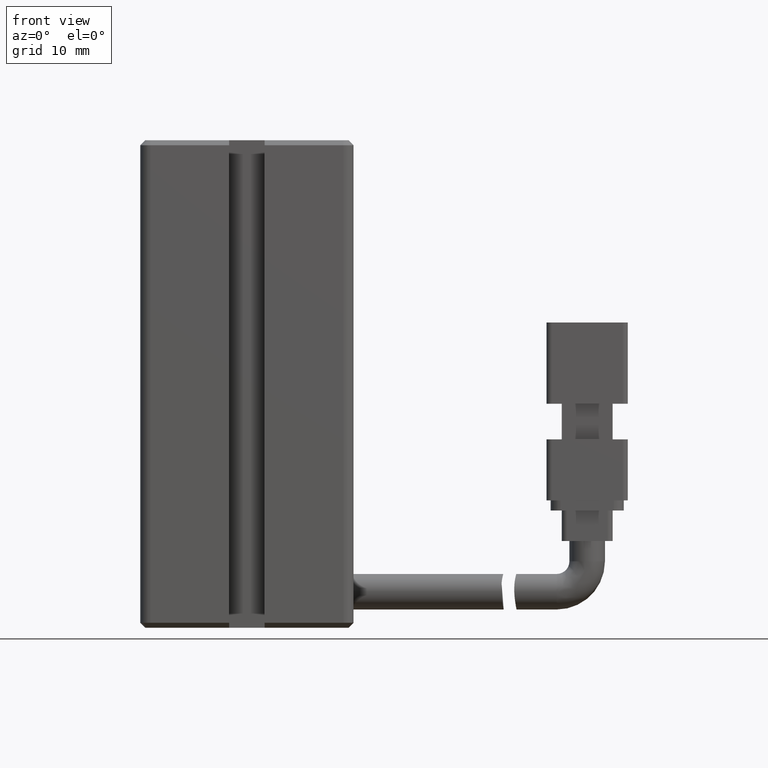
[diagram: clean part render]
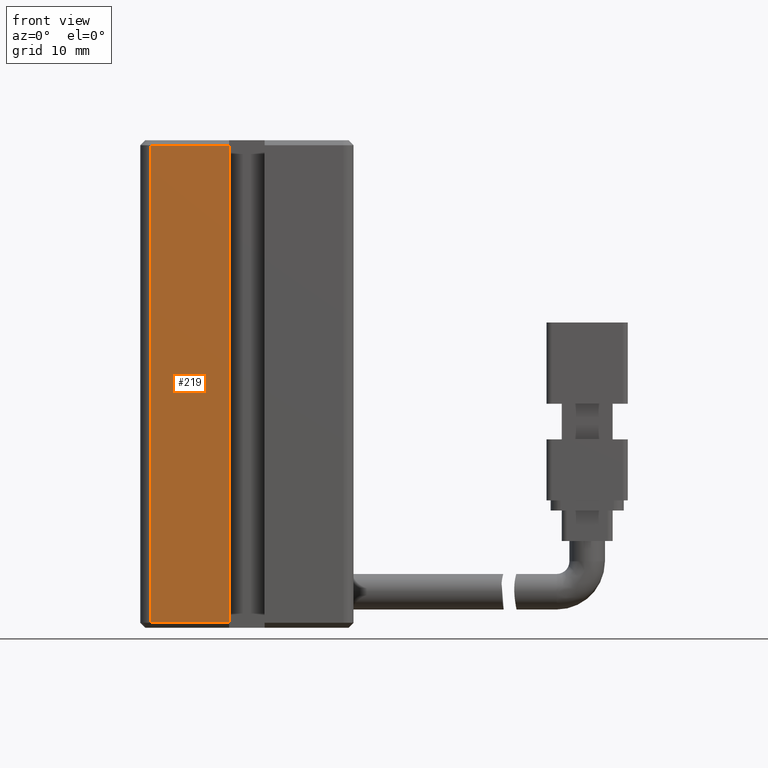
[diagram: same view with one face highlighted and labeled with its STEP entity id]
A machine part, front view. The second image highlights one B-rep face of the part: STEP entity #219.
In plain terms, the highlighted planar face has unit normal (0, -1, 0).
Its self-contained STEP definition (entity closure, byte-faithful):
#219 = ADVANCED_FACE ( 'NONE', ( #21812 ), #13846, .T. ) ;
#1153 = LINE ( 'NONE', #27640, #3471 ) ;
#3283 = CARTESIAN_POINT ( 'NONE',  ( 39.17537974683542500, 10.99073232304837000, -91.50000000000000000 ) ) ;
#3471 = VECTOR ( 'NONE', #21629, 1000.000000000000000 ) ;
#3717 = AXIS2_PLACEMENT_3D ( 'NONE', #4478, #13967, #10597 ) ;
#4058 = VERTEX_POINT ( 'NONE', #8621 ) ;
#4478 = CARTESIAN_POINT ( 'NONE',  ( 40.92537974683542500, 10.99073232304837000, -91.00000000000000000 ) ) ;
#7350 = EDGE_CURVE ( 'NONE', #32175, #4058, #19402, .T. ) ;
#7577 = CARTESIAN_POINT ( 'NONE',  ( 39.17537974683542500, 10.99073232304837000, -91.00000000000000000 ) ) ;
#8621 = CARTESIAN_POINT ( 'NONE',  ( 31.42537974683542900, 10.99073232304837000, -91.50000000000000000 ) ) ;
#10597 = DIRECTION ( 'NONE',  ( 0.0000000000000000000, -0.0000000000000000000, -1.000000000000000000 ) ) ;
#10728 = ORIENTED_EDGE ( 'NONE', *, *, #17965, .T. ) ;
#13068 = DIRECTION ( 'NONE',  ( -1.000000000000000000, 0.0000000000000000000, -0.0000000000000000000 ) ) ;
#13846 = PLANE ( 'NONE',  #3717 ) ;
#13967 = DIRECTION ( 'NONE',  ( 0.0000000000000000000, -1.000000000000000000, 0.0000000000000000000 ) ) ;
#14848 = LINE ( 'NONE', #38739, #34059 ) ;
#17206 = ORIENTED_EDGE ( 'NONE', *, *, #7350, .T. ) ;
#17965 = EDGE_CURVE ( 'NONE', #4058, #21767, #1153, .T. ) ;
#19402 = LINE ( 'NONE', #27864, #27851 ) ;
#21629 = DIRECTION ( 'NONE',  ( 0.0000000000000000000, -0.0000000000000000000, -1.000000000000000000 ) ) ;
#21767 = VERTEX_POINT ( 'NONE', #25654 ) ;
#21812 = FACE_OUTER_BOUND ( 'NONE', #35555, .T. ) ;
#21970 = ORIENTED_EDGE ( 'NONE', *, *, #30660, .F. ) ;
#21981 = VECTOR ( 'NONE', #28497, 1000.000000000000000 ) ;
#23331 = DIRECTION ( 'NONE',  ( -1.000000000000000000, -0.0000000000000000000, -0.0000000000000000000 ) ) ;
#25654 = CARTESIAN_POINT ( 'NONE',  ( 31.42537974683542900, 10.99073232305496000, -138.5000000000031800 ) ) ;
#27640 = CARTESIAN_POINT ( 'NONE',  ( 31.42537974683542900, 10.99073232304837000, -91.00000000000000000 ) ) ;
#27851 = VECTOR ( 'NONE', #13068, 1000.000000000000000 ) ;
#27864 = CARTESIAN_POINT ( 'NONE',  ( 40.92537974683542500, 10.99073232304837000, -91.50000000000000000 ) ) ;
#28497 = DIRECTION ( 'NONE',  ( -0.0000000000000000000, 0.0000000000000000000, 1.000000000000000000 ) ) ;
#30660 = EDGE_CURVE ( 'NONE', #32850, #21767, #14848, .T. ) ;
#31799 = EDGE_CURVE ( 'NONE', #32850, #32175, #35104, .T. ) ;
#32175 = VERTEX_POINT ( 'NONE', #3283 ) ;
#32850 = VERTEX_POINT ( 'NONE', #34200 ) ;
#33584 = ORIENTED_EDGE ( 'NONE', *, *, #31799, .T. ) ;
#34059 = VECTOR ( 'NONE', #23331, 1000.000000000000000 ) ;
#34200 = CARTESIAN_POINT ( 'NONE',  ( 39.17537974683542500, 10.99073232304836600, -138.5000000000000000 ) ) ;
#35104 = LINE ( 'NONE', #7577, #21981 ) ;
#35555 = EDGE_LOOP ( 'NONE', ( #10728, #21970, #33584, #17206 ) ) ;
#38739 = CARTESIAN_POINT ( 'NONE',  ( 40.92537974683542500, 10.99073232304836400, -138.5000000000000000 ) ) ;